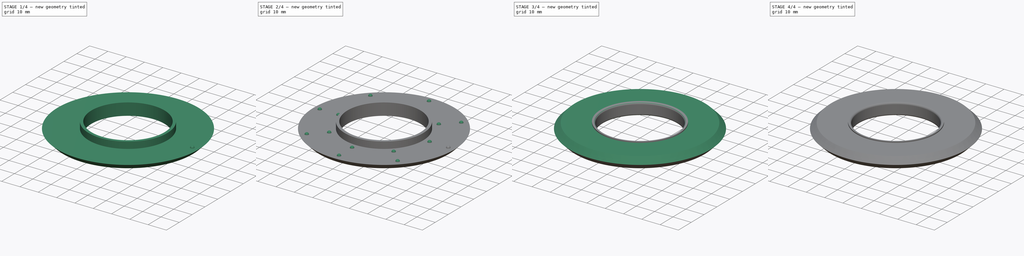
[diagram: build sequence overview — one tinted view per stage of 4, left to right]
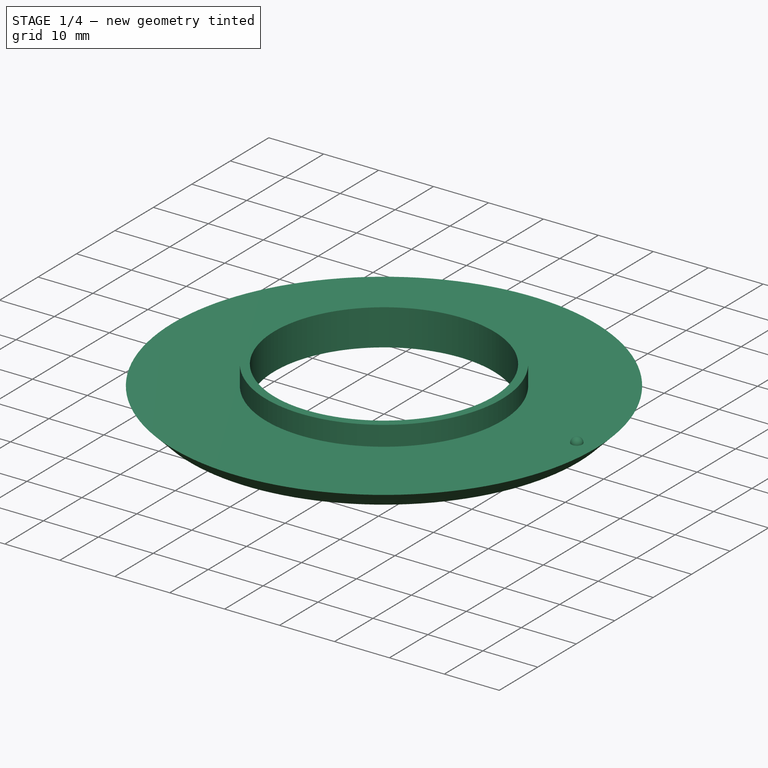
[diagram: stage 1 of 4 — iso view after this stage's code; geometry added in this stage tinted green]
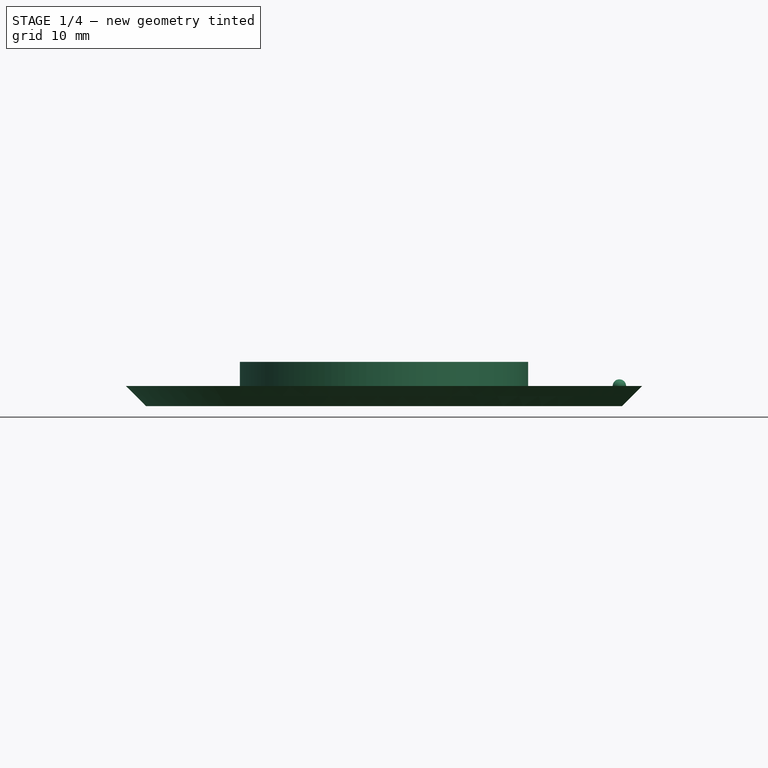
[diagram: stage 1 of 4 — front view after this stage's code; geometry added in this stage tinted green]
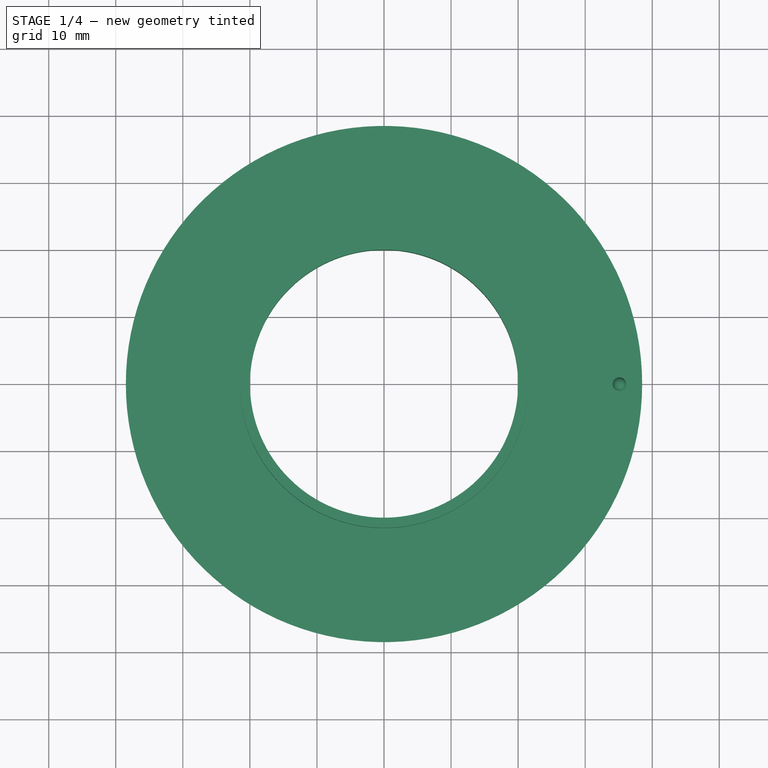
[diagram: stage 1 of 4 — top view after this stage's code; geometry added in this stage tinted green]
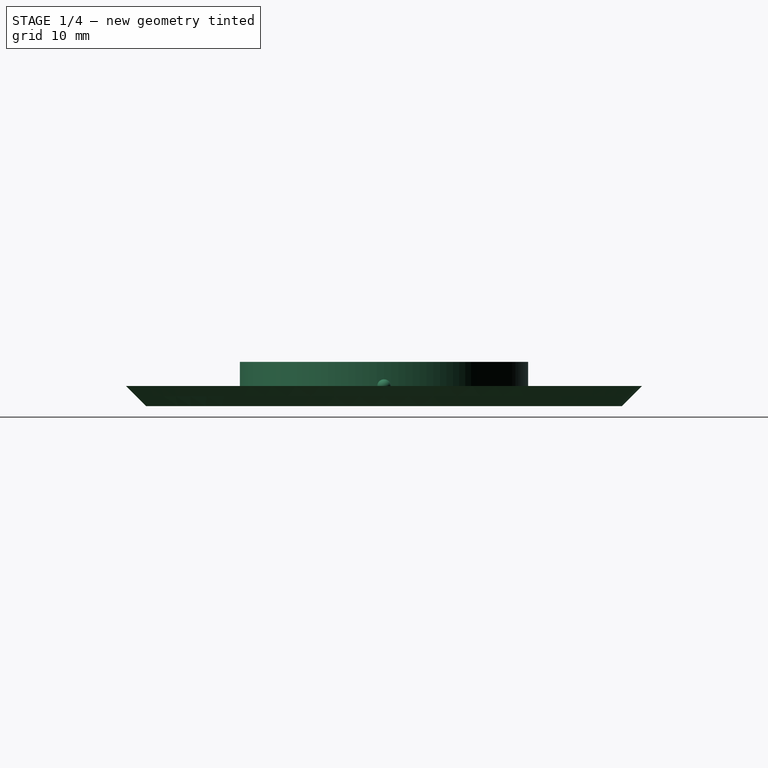
[diagram: stage 1 of 4 — right view after this stage's code; geometry added in this stage tinted green]
FCSTD DOCUMENT  (FreeCAD 1.0R39285 (Git))
Label: sheer-eylet
License: All rights reserved
LicenseURL: https://en.wikipedia.org/wiki/All_rights_reserved
objects: Sketcher::SketchObject×4, PartDesign::Revolution×2, PartDesign::AdditiveSphere×2, PartDesign::Groove×2, PartDesign::Body×2, PartDesign::Fillet×2, App::VarSet×1, PartDesign::SubShapeBinder×1, PartDesign::PolarPattern×1
note: 37 computed .brp shape members not serialized (recipe doc carries the construction recipe); baked Part::Feature solids carry a one-line shape summary decoded from their .brp

FEATURE [Sketcher::SketchObject] Sketch
  ArcFitTolerance = 1e-06
  AttachmentSupport = -> [XZ_Plane]
  FullyConstrained = true
  MakeInternals = false
  MapMode = 5
  Placement = pos=(0,0,0) rot=(1,0,0;1.5708rad)
  expr: Constraints[16] = VarSet.Base_OuterAngle
  expr: Constraints[17] = VarSet.Base_RimWidth
  expr: Constraints[18] = VarSet.Base_InnerDiameter / 2
  expr: Constraints[2] = VarSet.Base_Thickness
  expr: Constraints[5] = VarSet.Base_Thickness + VarSet.Base_PegTolerance * 2
  expr: Constraints[8] = VarSet.Base_MinThickness
  sketch-geometry (7):
    g0: LineSegment StartX=35.5 StartY=0 StartZ=0 EndX=38.5 EndY=3 EndZ=0
    g1: LineSegment StartX=20 StartY=0 StartZ=0 EndX=20 EndY=3 EndZ=0
    g2: LineSegment StartX=20 StartY=3 StartZ=0 EndX=20 EndY=6.6 EndZ=0
    g3: LineSegment StartX=20 StartY=6.6 StartZ=0 EndX=21.5 EndY=6.6 EndZ=0
    g4: LineSegment StartX=21.5 StartY=3 StartZ=0 EndX=38.5 EndY=3 EndZ=0
    g5: LineSegment StartX=21.5 StartY=6.6 StartZ=0 EndX=21.5 EndY=3 EndZ=0
    g6: LineSegment StartX=20 StartY=0 StartZ=0 EndX=35.5 EndY=0 EndZ=0
  constraints (22):
    c: PointOnObject(g0,g-1)
    c: Vertical(g1)
    c: DistanceY(g-1,g1) = 3
    c: Coincident(g2,g1)
    c: Vertical(g2)
    c: DistanceY(g2,g2) = 3.6
    c: Coincident(g3,g2)
    c: Horizontal(g3)
    c: Distance(g3,g3) = 1.5
    c: Horizontal(g4)
    c: PointOnObject(g4,g0)
    c: PointOnObject(g0,g4)
    c: Coincident(g5,g3)
    c: Vertical(g5)
    c: Coincident(g4,g5)
    c: Equal(g5,g2)
    c: Angle(g4,g0) = 0.785398
    c: DistanceX(g4,g4) = 17
    c: DistanceX(g-1,g1) = 20
    c: Coincident(g6,g1)
    c: Coincident(g6,g0)
    c: Horizontal(g6)
FEATURE [App::VarSet] VarSet
  Base_InnerDiameter = 40
  Base_InnerFilletRadius = 1
  Base_MinThickness = 1.5
  Base_OuterAngle = 45
  Base_PegLineOccurences = 10
  Base_PegNumber = 8
  Base_PegOffset = 3.4
  Base_PegRadius = 1
  Base_PegTolerance = 0.3
  Base_RimWidth = 17
  Base_Thickness = 3
  expr: Base_PegOffset = Base_RimWidth / 5
FEATURE [PartDesign::Revolution] Revolution
  Angle = 360
  Angle2 = 60
  Axis = (0,2e-16,1)
  Base = (0,0,0)
  Placement = pos=(0,0,0) rot=(1,0,0;1.5708rad)
  Profile = -> Sketch
  ReferenceAxis = -> Sketch [V_Axis]
  Refine = true
  Reversed = true
  Suppressed = false
  Type = 0
FEATURE [Sketcher::SketchObject] Sketch002
  ArcFitTolerance = 1e-06
  AttachmentSupport = -> [Revolution]
  ExternalGeometry = -> [Revolution]
  FullyConstrained = true
  MakeInternals = false
  MapMode = 5
  Placement = pos=(0,1.3e-15,3) rot=(0,0,1;3.14159rad)
  expr: Constraints[2] = VarSet.Base_PegOffset
  expr: Constraints[3] = VarSet.Base_PegOffset
  sketch-geometry (2):
    g0: GeomPoint X=-24.9 Y=0 Z=0
    g1: GeomPoint X=-35.1 Y=0 Z=0
  constraints (4):
    c: PointOnObject(g0,g-1)
    c: PointOnObject(g1,g-1)
    c: Distance(g1,g-4) = 3.4
    c: Distance(g0,g-3) = 3.4
FEATURE [PartDesign::AdditiveSphere] Sphere
  Angle1 = -90
  Angle2 = 90
  Angle3 = 360
  AttacherType = Attacher::AttachEngine3D
  AttachmentSupport = -> [Sketch002]
  BaseFeature = -> Revolution
  MapMode = 1
  Placement = pos=(35.1,1.3e-15,3) rot=(0,0,1;0rad)
  Radius = 1
  Refine = true
  Suppressed = false
  expr: Radius = VarSet.Base_PegRadius
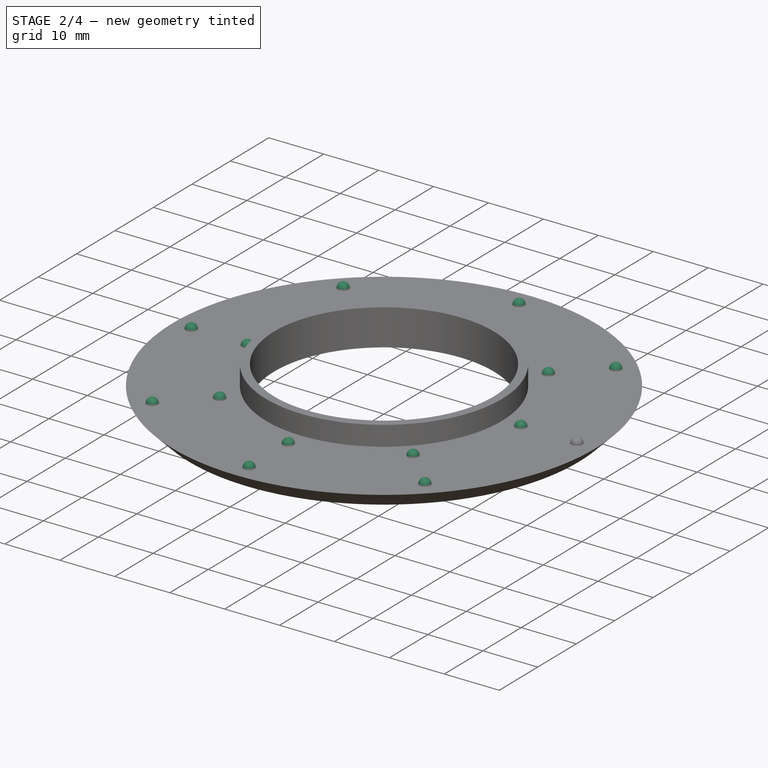
[diagram: stage 2 of 4 — iso view after this stage's code; geometry added in this stage tinted green]
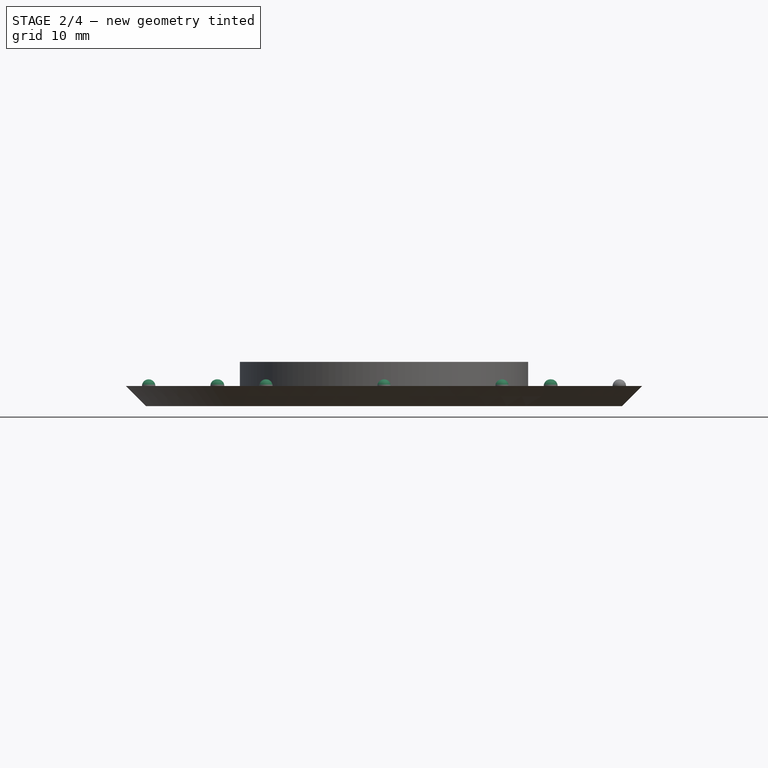
[diagram: stage 2 of 4 — front view after this stage's code; geometry added in this stage tinted green]
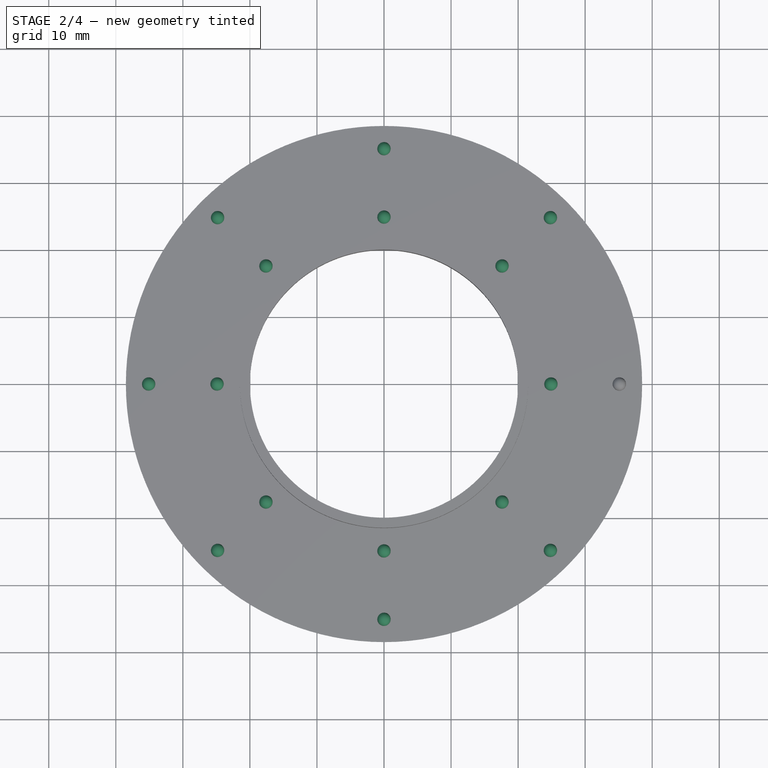
[diagram: stage 2 of 4 — top view after this stage's code; geometry added in this stage tinted green]
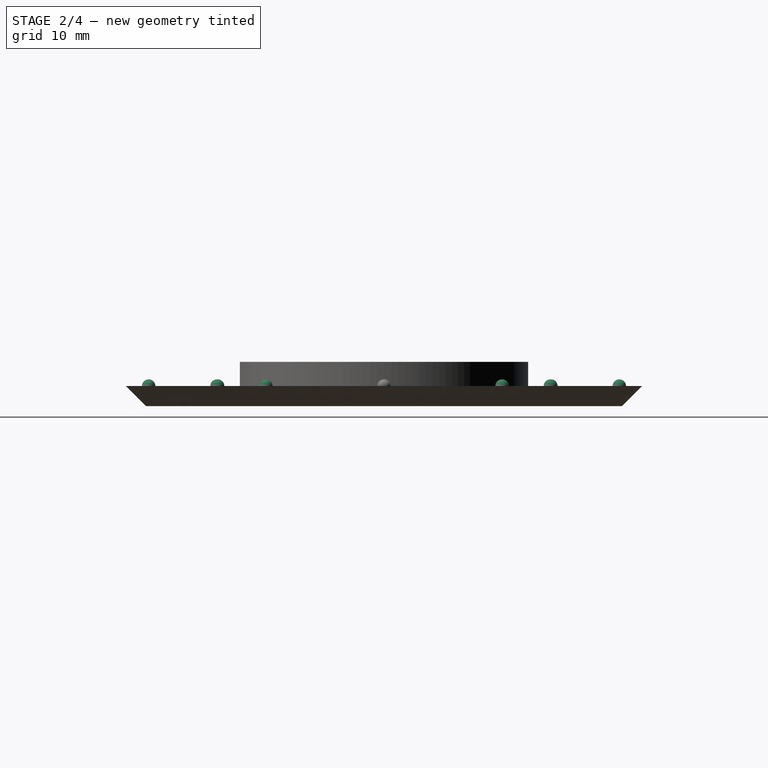
[diagram: stage 2 of 4 — right view after this stage's code; geometry added in this stage tinted green]
FEATURE [PartDesign::AdditiveSphere] Sphere001
  Angle1 = -90
  Angle2 = 90
  Angle3 = 360
  AttacherType = Attacher::AttachEngine3D
  AttachmentSupport = -> [Sketch002]
  BaseFeature = -> Sphere
  MapMode = 1
  Placement = pos=(24.9,1.3e-15,3) rot=(0,0,1;0rad)
  Radius = 1
  Refine = true
  Suppressed = false
  expr: Radius = VarSet.Base_PegRadius
FEATURE [PartDesign::PolarPattern] PolarPattern
  Angle = 360
  Axis = -> Z_Axis
  BaseFeature = -> Sphere001
  Mode = 0
  Occurrences = 8
  Offset = 120
  Placement = pos=(24.9,7e-16,3) rot=(0,0,1;0rad)
  Refine = true
  Suppressed = false
  TransformMode = 1
  expr: Occurrences = VarSet.Base_PegNumber
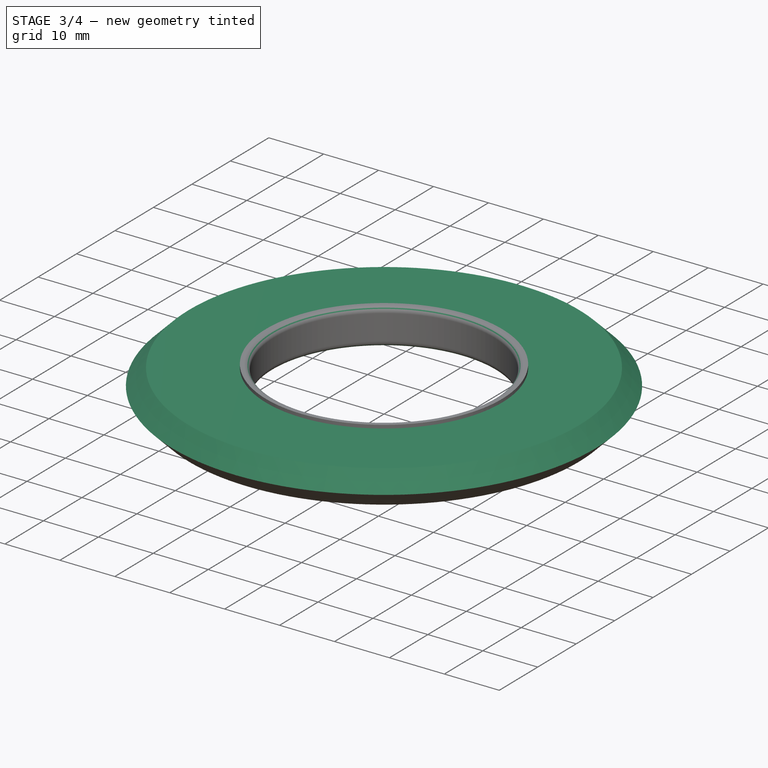
[diagram: stage 3 of 4 — iso view after this stage's code; geometry added in this stage tinted green]
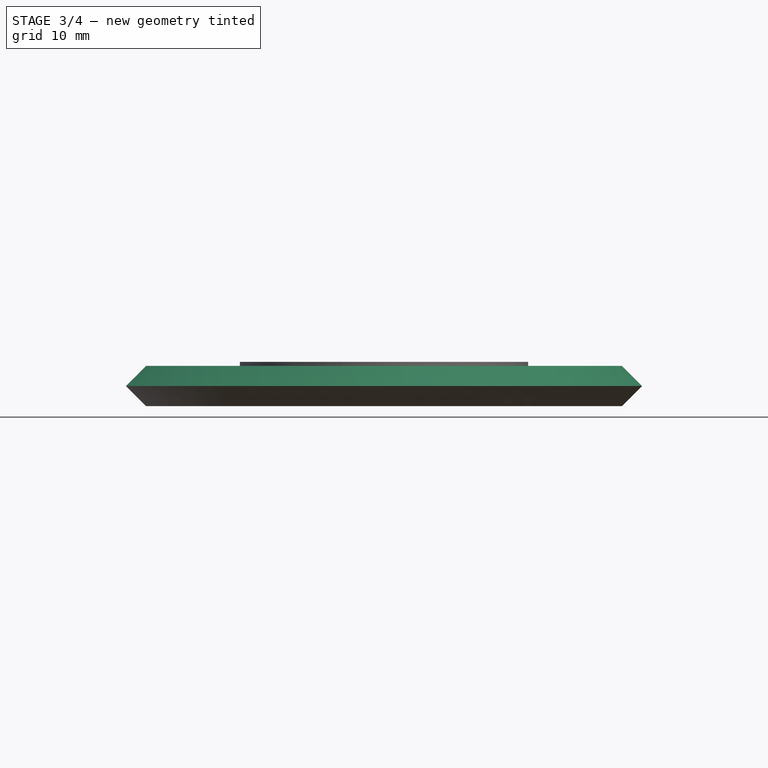
[diagram: stage 3 of 4 — front view after this stage's code; geometry added in this stage tinted green]
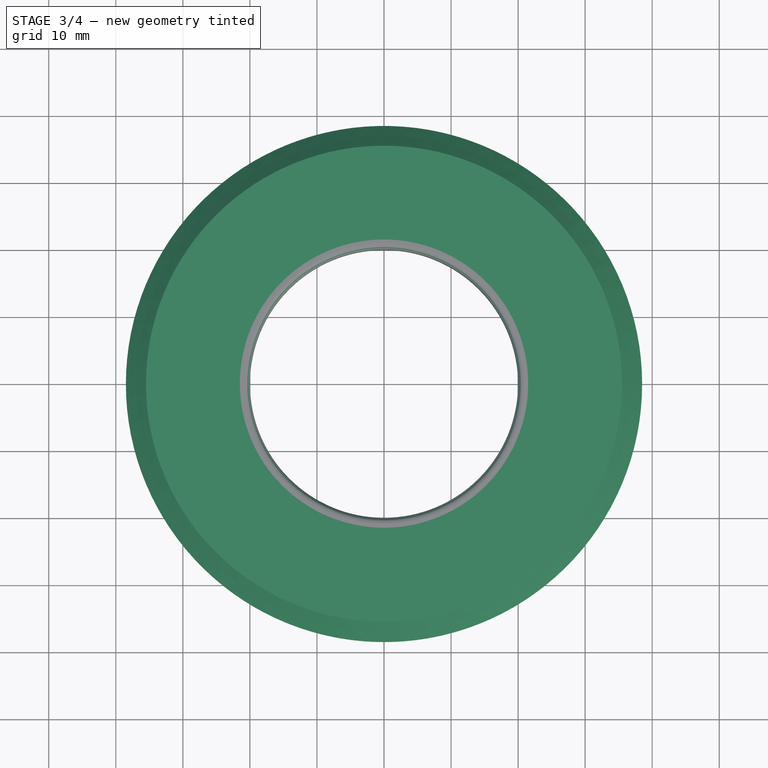
[diagram: stage 3 of 4 — top view after this stage's code; geometry added in this stage tinted green]
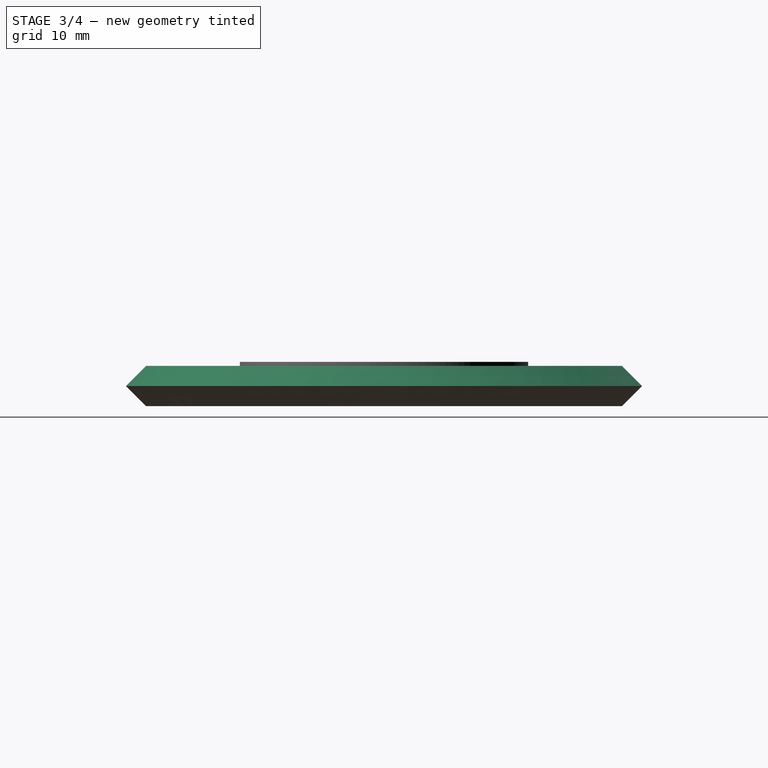
[diagram: stage 3 of 4 — right view after this stage's code; geometry added in this stage tinted green]
FEATURE [PartDesign::SubShapeBinder] Binder
  BindCopyOnChange = 0
  BindMode = 0
  ClaimChildren = false
  Context = -> Body001 [Binder.]
  Fuse = false
  MakeFace = true
  OffsetFill = false
  OffsetIntersection = false
  OffsetJoinType = 0
  OffsetOpenResult = false
  PartialLoad = false
  Refine = true
  Relative = true
  Support = -> [Body]
  _Version = 2
FEATURE [Sketcher::SketchObject] Sketch001
  ArcFitTolerance = 1e-06
  AttachmentSupport = -> [XZ_Plane001]
  FullyConstrained = true
  MakeInternals = false
  MapMode = 5
  Placement = pos=(0,0,0) rot=(1,0,0;1.5708rad)
  expr: Constraints[4] = VarSet.Base_OuterAngle
  expr: Constraints[9] = VarSet.Base_RimWidth
  sketch-geometry (4):
    g0: LineSegment StartX=21.5 StartY=6 StartZ=0 EndX=21.5 EndY=3 EndZ=0
    g1: LineSegment StartX=38.5 StartY=3 StartZ=0 EndX=21.5 EndY=3 EndZ=0
    g2: LineSegment StartX=38.5 StartY=3 StartZ=0 EndX=35.5 EndY=6 EndZ=0
    g3: LineSegment StartX=21.5 StartY=6 StartZ=0 EndX=35.5 EndY=6 EndZ=0
  constraints (11):
    c: Coincident(g0,g-3)
    c: Coincident(g0,g-3)
    c: Coincident(g1,g0)
    c: Coincident(g2,g1)
    c: Angle(g2,g1) = 0.785398
    c: Coincident(g3,g0)
    c: Horizontal(g3)
    c: PointOnObject(g3,g2)
    c: PointOnObject(g2,g3)
    c: DistanceX(g1,g1) = 17
    c: Horizontal(g1)
FEATURE [PartDesign::Revolution] Revolution001
  Angle = 360
  Angle2 = 60
  Axis = (0,2e-16,1)
  Base = (0,0,0)
  Placement = pos=(0,0,0) rot=(1,0,0;1.5708rad)
  Profile = -> Sketch001
  ReferenceAxis = -> Sketch001 [V_Axis]
  Refine = true
  Reversed = true
  Suppressed = false
  Type = 0
FEATURE [PartDesign::Body] Body001  label="inner"
  AllowCompound = false
  Group = -> [Binder,Sketch001,Revolution001,Sketch003,Groove,Groove001]
  Origin = -> Origin001
  Tip = -> Groove001
FEATURE [PartDesign::Fillet] Fillet
  Base = -> PolarPattern [Edge8,Edge1,Edge2,Edge3,Edge4,Edge5,Edge6,Edge7]
  BaseFeature = -> PolarPattern
  Placement = pos=(24.9,7e-16,3) rot=(0,0,1;0rad)
  Radius = 1
  Refine = true
  SupportTransform = false
  Suppressed = false
  UseAllEdges = false
  expr: Radius = VarSet.Base_InnerFilletRadius
FEATURE [PartDesign::Fillet] Fillet001
  Base = -> Fillet [Edge54,Edge53,Edge52,Edge51,Edge50,Edge49,Edge48,Edge47]
  BaseFeature = -> Fillet
  Placement = pos=(24.9,7e-16,3) rot=(0,0,1;0rad)
  Radius = 1
  Refine = true
  SupportTransform = false
  Suppressed = false
  UseAllEdges = false
  expr: Radius = VarSet.Base_InnerFilletRadius
FEATURE [PartDesign::Body] Body  label="outer"
  AllowCompound = false
  Group = -> [Sketch,Revolution,Sketch002,Sphere,Sphere001,PolarPattern,Fillet,Fillet001]
  Origin = -> Origin
  Tip = -> Fillet001
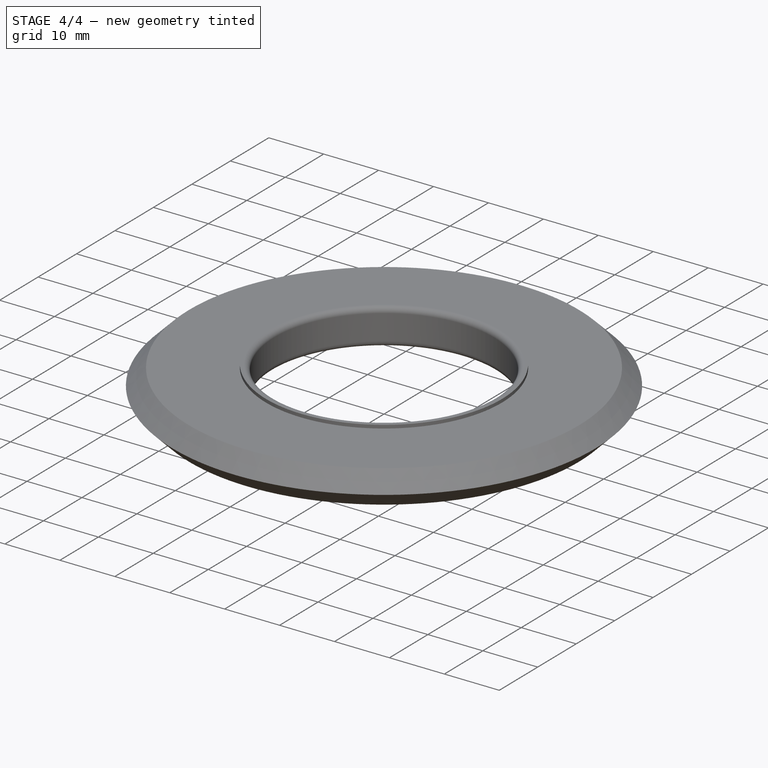
[diagram: stage 4 of 4 — iso view after this stage's code; geometry added in this stage tinted green]
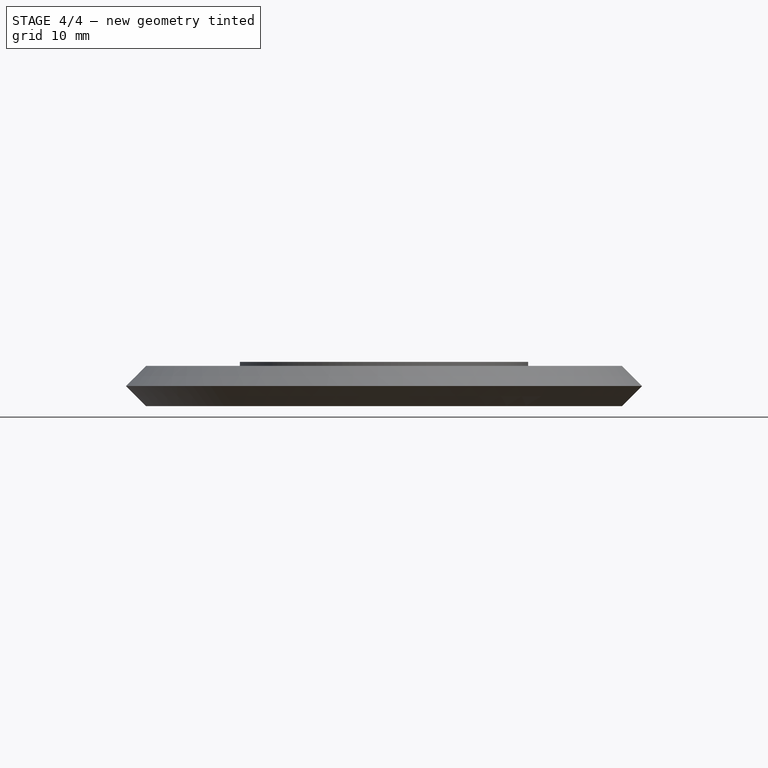
[diagram: stage 4 of 4 — front view after this stage's code; geometry added in this stage tinted green]
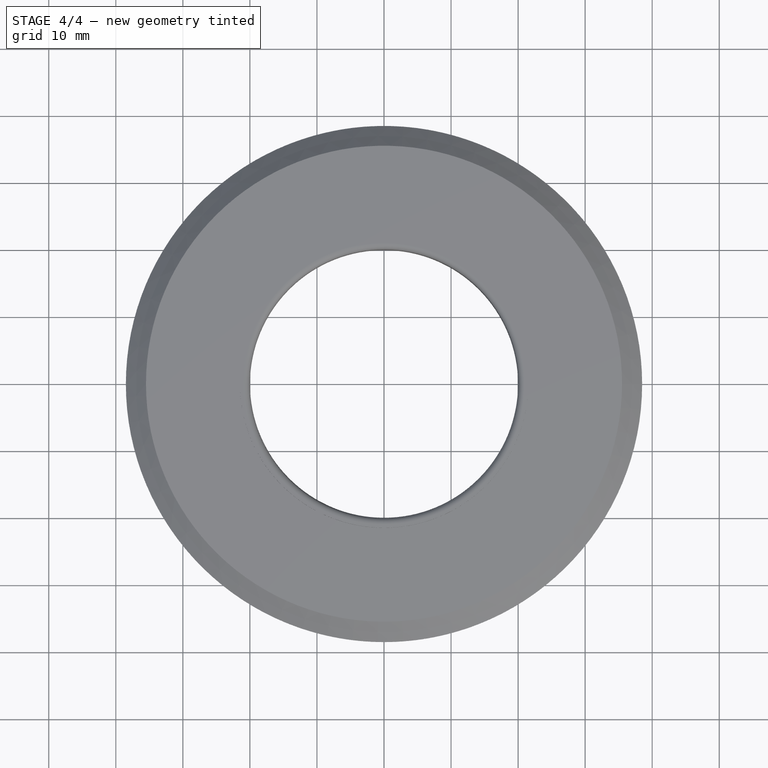
[diagram: stage 4 of 4 — top view after this stage's code; geometry added in this stage tinted green]
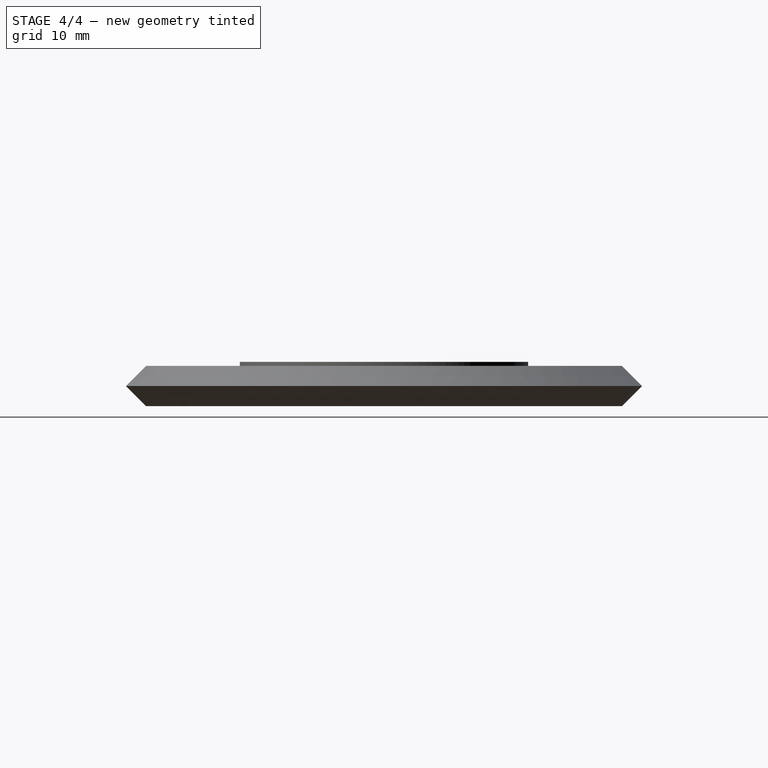
[diagram: stage 4 of 4 — right view after this stage's code; geometry added in this stage tinted green]
FEATURE [Sketcher::SketchObject] Sketch003
  ArcFitTolerance = 1e-06
  AttachmentSupport = -> [XZ_Plane001]
  ExternalGeometry = -> [Revolution001]
  FullyConstrained = true
  MakeInternals = false
  MapMode = 5
  Placement = pos=(0,0,0) rot=(1,0,0;1.5708rad)
  expr: Constraints[1] = VarSet.Base_PegOffset
  expr: Constraints[2] = VarSet.Base_PegRadius * 2 + VarSet.Base_PegTolerance
  expr: Constraints[4] = VarSet.Base_PegOffset
  sketch-geometry (2):
    g0: Circle CenterX=35.1 CenterY=3 CenterZ=0 NormalX=0 NormalY=0 NormalZ=1 AngleXU=0 Radius=1.15
    g1: Circle CenterX=24.9 CenterY=3 CenterZ=0 NormalX=0 NormalY=0 NormalZ=1 AngleXU=0 Radius=1.15
  constraints (6):
    c: PointOnObject(g0,g-4)
    c: Distance(g0,g-4) = 3.4
    c: Diameter(g0) = 2.3
    c: PointOnObject(g1,g-4)
    c: Distance(g-3,g1) = 3.4
    c: Equal(g1,g0)
FEATURE [PartDesign::Groove] Groove
  Angle = 360
  Angle2 = 60
  Axis = (0,2e-16,1)
  Base = (0,0,0)
  BaseFeature = -> Revolution001
  Placement = pos=(0,0,0) rot=(1,0,0;1.5708rad)
  Profile = -> Sketch003 [Edge1]
  ReferenceAxis = -> Sketch003 [V_Axis]
  Refine = true
  Suppressed = false
  Type = 0
FEATURE [PartDesign::Groove] Groove001
  Angle = 360
  Angle2 = 60
  Axis = (0,2e-16,1)
  Base = (0,0,0)
  BaseFeature = -> Groove
  Placement = pos=(0,0,0) rot=(1,0,0;1.5708rad)
  Profile = -> Sketch003
  ReferenceAxis = -> Sketch003 [V_Axis]
  Refine = true
  Suppressed = false
  Type = 0
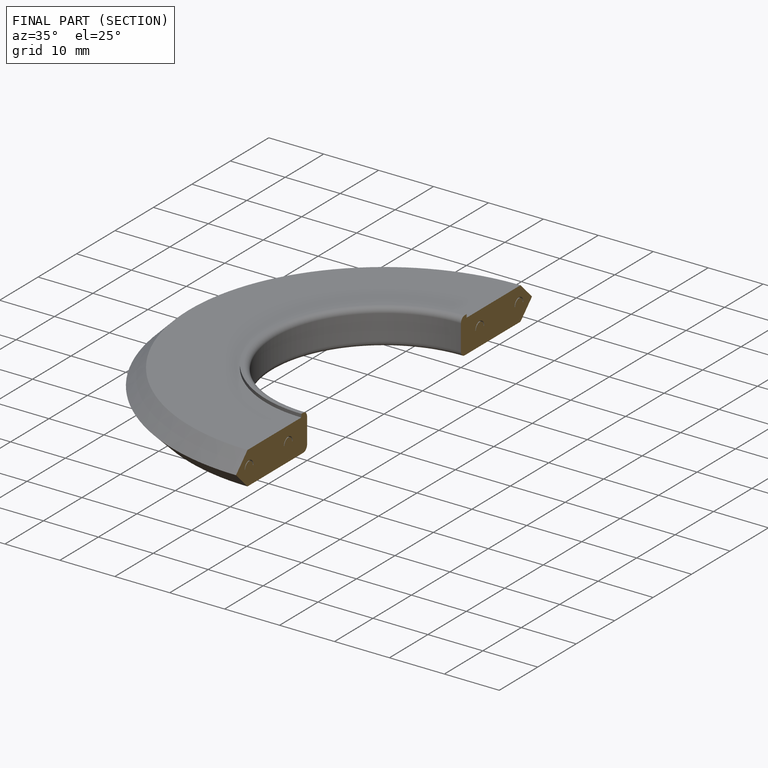
[diagram: finished part — half-section view (interior)]
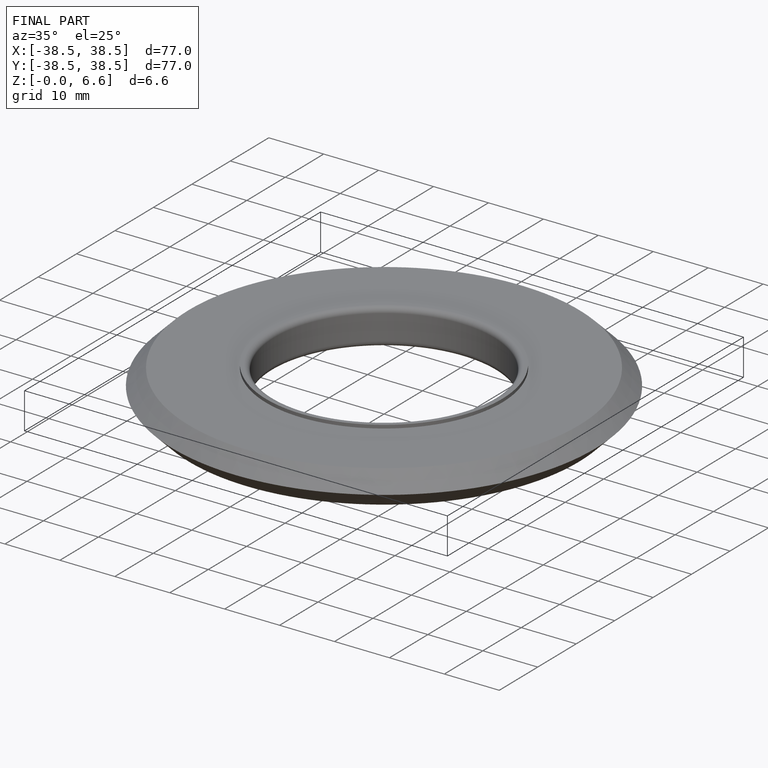
[diagram: finished part — iso view with bounding-box wireframe]
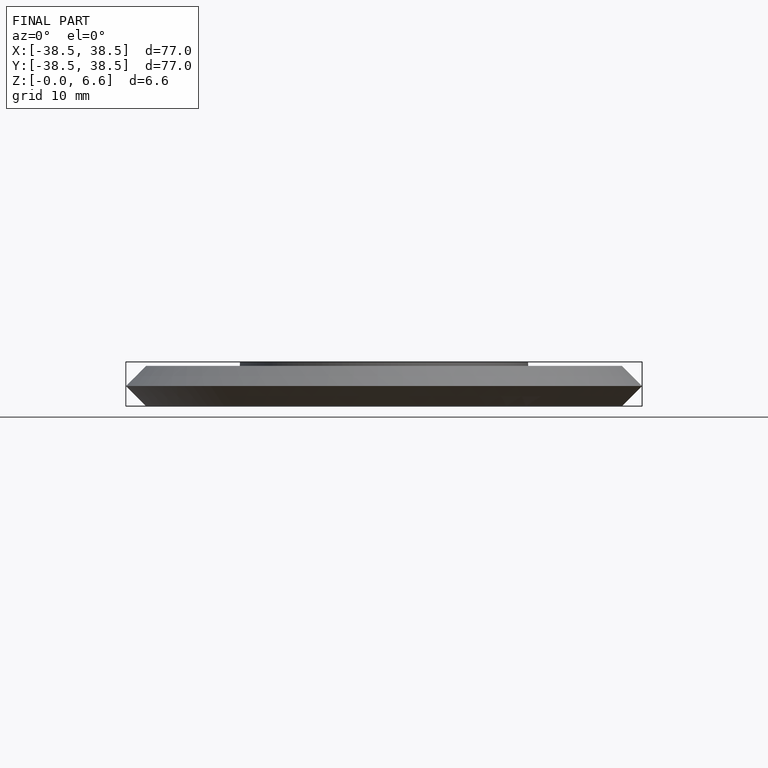
[diagram: finished part — front view with bounding-box wireframe]
